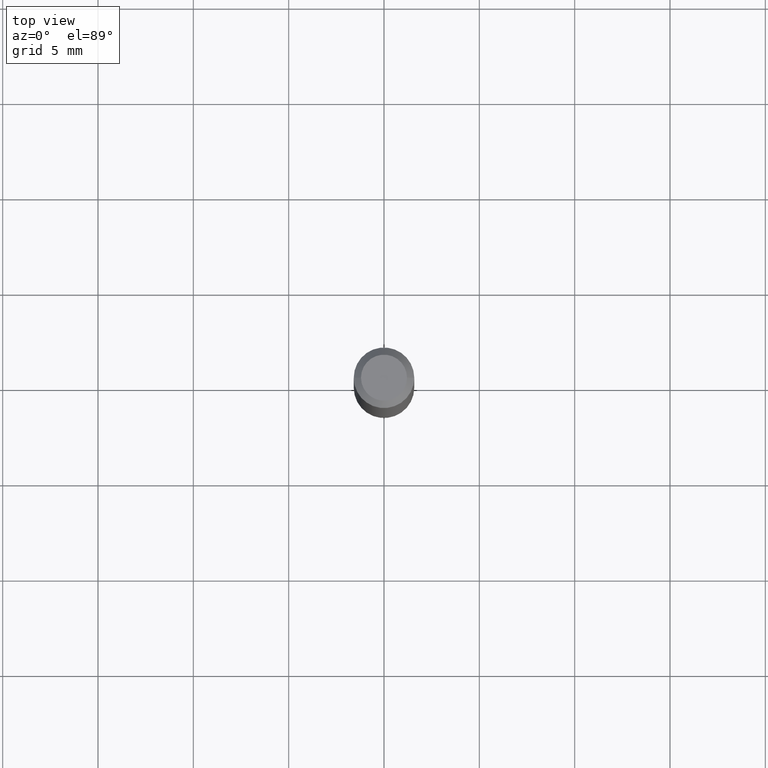
[diagram: clean part render]
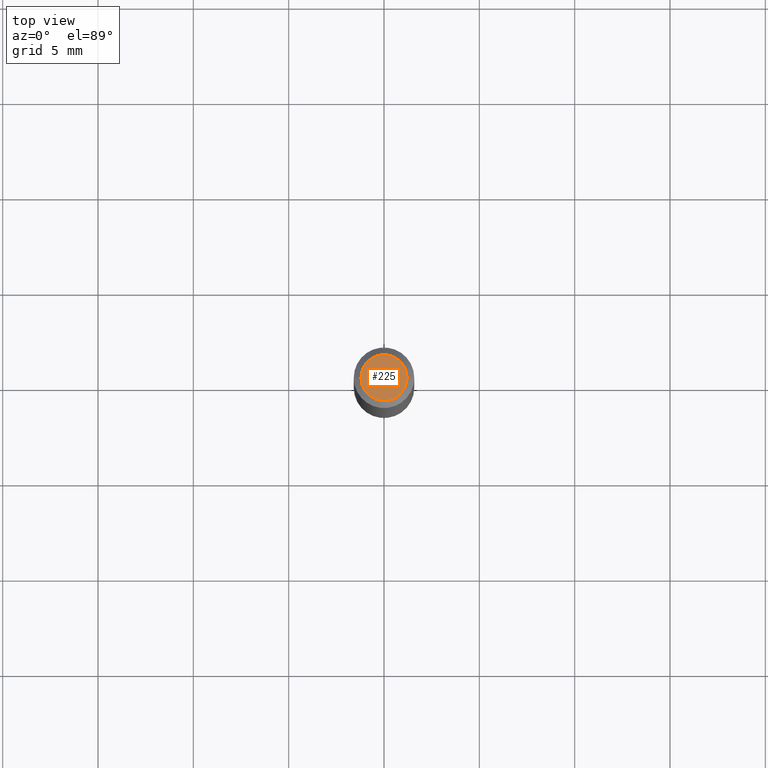
[diagram: same view with one face highlighted and labeled with its STEP entity id]
A machine part, top view. The second image highlights one B-rep face of the part: STEP entity #225.
In plain terms, the highlighted planar face has unit normal (0, -0, -1).
Its self-contained STEP definition (entity closure, byte-faithful):
#19 = DIRECTION ( 'NONE',  ( 2.438088387897960049E-29, -3.491481338843145188E-15, -1.000000000000000000 ) ) ;
#29 = ORIENTED_EDGE ( 'NONE', *, *, #348, .T. ) ;
#49 = CARTESIAN_POINT ( 'NONE',  ( -0.04749999999999999362, 3.578768372314212971E-16, 1.163426993633431407E-16 ) ) ;
#79 = FACE_OUTER_BOUND ( 'NONE', #94, .T. ) ;
#94 = EDGE_LOOP ( 'NONE', ( #29, #194 ) ) ;
#105 = AXIS2_PLACEMENT_3D ( 'NONE', #304, #19, #265 ) ;
#152 = CARTESIAN_POINT ( 'NONE',  ( -2.845124421204368749E-45, 4.062083637377592914E-31, 1.163426993633455566E-16 ) ) ;
#159 = EDGE_CURVE ( 'NONE', #172, #203, #288, .T. ) ;
#172 = VERTEX_POINT ( 'NONE', #430 ) ;
#194 = ORIENTED_EDGE ( 'NONE', *, *, #159, .T. ) ;
#201 = CARTESIAN_POINT ( 'NONE',  ( -2.845124421204368749E-45, 4.062083637377592914E-31, 1.163426993633455566E-16 ) ) ;
#203 = VERTEX_POINT ( 'NONE', #49 ) ;
#209 = AXIS2_PLACEMENT_3D ( 'NONE', #201, #351, #346 ) ;
#220 = DIRECTION ( 'NONE',  ( 1.000000000000000000, -6.982962677686267499E-15, 4.884662768193073002E-29 ) ) ;
#225 = ADVANCED_FACE ( 'NONE', ( #79 ), #229, .F. ) ;
#229 = PLANE ( 'NONE',  #105 ) ;
#230 = AXIS2_PLACEMENT_3D ( 'NONE', #152, #253, #220 ) ;
#253 = DIRECTION ( 'NONE',  ( -2.445468806185136597E-29, 3.491481338843145583E-15, 1.000000000000000000 ) ) ;
#265 = DIRECTION ( 'NONE',  ( -1.000000000000000000, 6.982962677686265922E-15, -4.876176775795935793E-29 ) ) ;
#288 = CIRCLE ( 'NONE', #230, 0.04749999999999999362 ) ;
#304 = CARTESIAN_POINT ( 'NONE',  ( 3.316907271900976096E-16, 0.04749999999999999362, -1.076740139133766305E-16 ) ) ;
#346 = DIRECTION ( 'NONE',  ( 1.000000000000000000, -6.982962677686267499E-15, 4.884662768193073002E-29 ) ) ;
#348 = EDGE_CURVE ( 'NONE', #203, #172, #409, .T. ) ;
#351 = DIRECTION ( 'NONE',  ( -2.445468806185136597E-29, 3.491481338843145583E-15, 1.000000000000000000 ) ) ;
#409 = CIRCLE ( 'NONE', #209, 0.04749999999999999362 ) ;
#430 = CARTESIAN_POINT ( 'NONE',  ( 0.04749999999999999362, -4.035134999187576651E-16, 1.163426993633481204E-16 ) ) ;